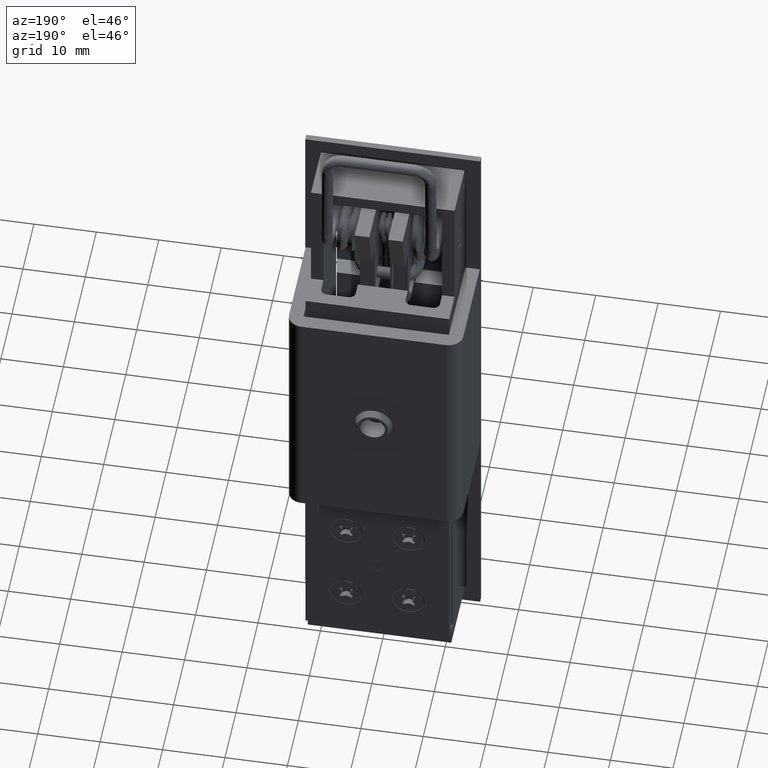
[diagram: clean part render]
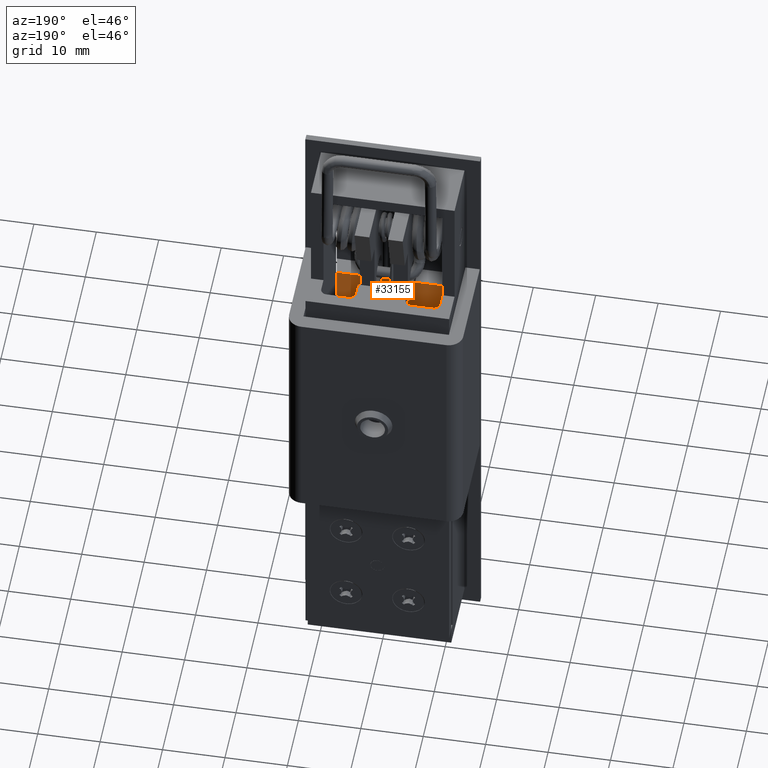
[diagram: same view with one face highlighted and labeled with its STEP entity id]
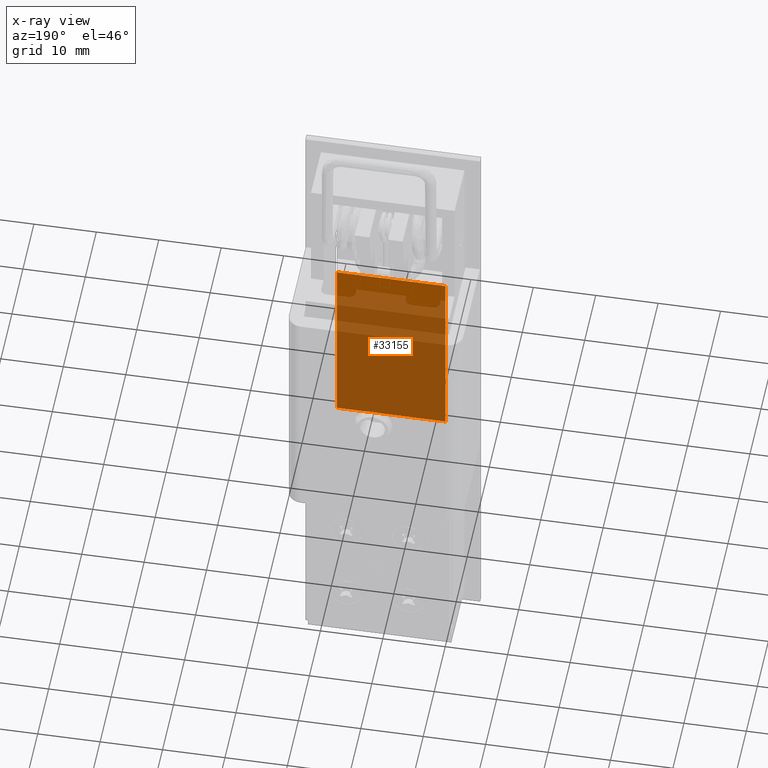
[diagram: x-ray of the same camera — body ghosted, the highlighted face saturated]
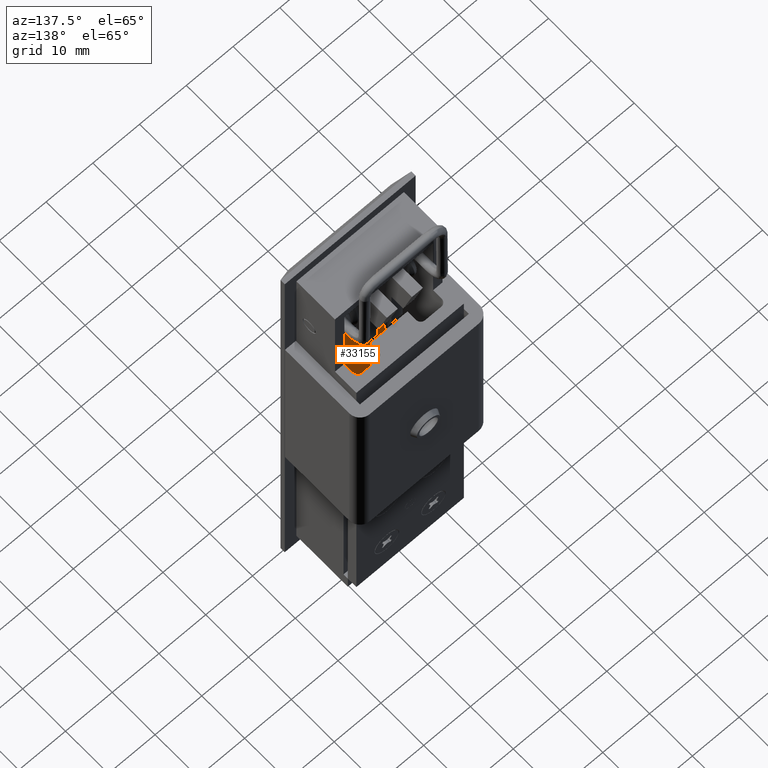
[diagram: same view with one face highlighted and labeled with its STEP entity id]
A machine part, auxiliary view. The second image highlights one B-rep face of the part: STEP entity #33155.
The next image is the same camera in x-ray: the body ghosted, the highlighted face saturated — about 86% of this face is hidden behind the body in this view.
A second angle (auxiliary view) of the same face is appended — the face is thin or edge-on in the first view.
In plain terms, the highlighted face is a freeform B-spline surface patch.
Its self-contained STEP definition (entity closure, byte-faithful):
#32436=CARTESIAN_POINT('',(2.500004459010885,3.845228787752375,72.250025127359010));
#32437=VERTEX_POINT('',#32436);
#32482=CARTESIAN_POINT('',(2.500004459010930,8.694691290922240,72.250025127359010));
#32483=VERTEX_POINT('',#32482);
#32491=CARTESIAN_POINT('',(2.500004459010930,8.694691290922240,72.250025127359010));
#32492=CARTESIAN_POINT('',(2.500004459010885,3.845228787752375,72.250025127359010));
#32493=QUASI_UNIFORM_CURVE('',1,(#32491,#32492),.UNSPECIFIED.,.F.,.U.);
#32494=EDGE_CURVE('',#32483,#32437,#32493,.T.);
#32504=CARTESIAN_POINT('',(2.500004459010885,1.500000000000055,72.250025127359010));
#32505=VERTEX_POINT('',#32504);
#32520=CARTESIAN_POINT('',(2.500004459010885,-1.500000000000000,72.250025127359010));
#32521=VERTEX_POINT('',#32520);
#32527=CARTESIAN_POINT('',(2.500004459010885,-1.500000000000000,72.250025127359010));
#32528=CARTESIAN_POINT('',(2.500004459010885,1.500000000000055,72.250025127359010));
#32529=QUASI_UNIFORM_CURVE('',1,(#32527,#32528),.UNSPECIFIED.,.F.,.U.);
#32530=EDGE_CURVE('',#32521,#32505,#32529,.T.);
#32736=CARTESIAN_POINT('',(2.500004459010930,-8.694691290922261,72.250025127359010));
#32737=VERTEX_POINT('',#32736);
#32738=CARTESIAN_POINT('',(2.500004459010885,-3.845228787752375,72.250025127359010));
#32739=VERTEX_POINT('',#32738);
#32740=CARTESIAN_POINT('',(2.500004459010930,-8.694691290922261,72.250025127359010));
#32741=CARTESIAN_POINT('',(2.500004459010885,-3.845228787752375,72.250025127359010));
#32742=QUASI_UNIFORM_CURVE('',1,(#32740,#32741),.UNSPECIFIED.,.F.,.U.);
#32743=EDGE_CURVE('',#32737,#32739,#32742,.T.);
#32932=CARTESIAN_POINT('',(2.499991650959080,8.694693549327390,41.499975925223850));
#32933=VERTEX_POINT('',#32932);
#32934=CARTESIAN_POINT('',(2.499991650959080,8.694693549327390,41.499975925223850));
#32935=CARTESIAN_POINT('',(2.500004459010930,8.694691290922240,72.250025127359010));
#32936=QUASI_UNIFORM_CURVE('',1,(#32934,#32935),.UNSPECIFIED.,.F.,.U.);
#32937=EDGE_CURVE('',#32933,#32483,#32936,.T.);
#33081=CARTESIAN_POINT('',(2.499991650959080,-8.694693549327280,41.499975925223850));
#33082=VERTEX_POINT('',#33081);
#33098=CARTESIAN_POINT('',(2.499991650959080,-8.694693549327280,41.499975925223850));
#33099=CARTESIAN_POINT('',(2.500004459010930,-8.694691290922261,72.250025127359010));
#33100=QUASI_UNIFORM_CURVE('',1,(#33098,#33099),.UNSPECIFIED.,.F.,.U.);
#33101=EDGE_CURVE('',#33082,#32737,#33100,.T.);
#33128=CARTESIAN_POINT('',(2.499991011197442,-9.563293401201074,39.964012291675381));
#33129=CARTESIAN_POINT('',(2.500005098772454,-9.563293401201074,73.785988485980624));
#33130=CARTESIAN_POINT('',(2.499991011197442,9.563293867620892,39.964012291675381));
#33131=CARTESIAN_POINT('',(2.500005098772454,9.563293867620892,73.785988485980624));
#33132=B_SPLINE_SURFACE_WITH_KNOTS('',1,1,((#33128,#33130),(#33129,#33131)),.UNSPECIFIED.,.F.,.F.,.U.,(2,2),(2,2),(0.0,33.821976194308192),(0.0,19.126587268821961),.UNSPECIFIED.);
#33133=ORIENTED_EDGE('',*,*,#32937,.T.);
#33134=ORIENTED_EDGE('',*,*,#32494,.T.);
#33135=CARTESIAN_POINT('',(2.500004459010885,1.500000000000055,72.250025127359010));
#33136=CARTESIAN_POINT('',(2.500004459010885,3.845228787752375,72.250025127359010));
#33137=QUASI_UNIFORM_CURVE('',1,(#33135,#33136),.UNSPECIFIED.,.F.,.U.);
#33138=EDGE_CURVE('',#32505,#32437,#33137,.T.);
#33139=ORIENTED_EDGE('',*,*,#33138,.F.);
#33140=ORIENTED_EDGE('',*,*,#32530,.F.);
#33141=CARTESIAN_POINT('',(2.500004459010885,-3.845228787752375,72.250025127359010));
#33142=CARTESIAN_POINT('',(2.500004459010885,-1.500000000000000,72.250025127359010));
#33143=QUASI_UNIFORM_CURVE('',1,(#33141,#33142),.UNSPECIFIED.,.F.,.U.);
#33144=EDGE_CURVE('',#32739,#32521,#33143,.T.);
#33145=ORIENTED_EDGE('',*,*,#33144,.F.);
#33146=ORIENTED_EDGE('',*,*,#32743,.F.);
#33147=ORIENTED_EDGE('',*,*,#33101,.F.);
#33148=CARTESIAN_POINT('',(2.499991650959080,-8.694693549327280,41.499975925223850));
#33149=CARTESIAN_POINT('',(2.499991650959080,8.694693549327390,41.499975925223850));
#33150=QUASI_UNIFORM_CURVE('',1,(#33148,#33149),.UNSPECIFIED.,.F.,.U.);
#33151=EDGE_CURVE('',#33082,#32933,#33150,.T.);
#33152=ORIENTED_EDGE('',*,*,#33151,.T.);
#33153=EDGE_LOOP('',(#33133,#33134,#33139,#33140,#33145,#33146,#33147,#33152));
#33154=FACE_OUTER_BOUND('',#33153,.T.);
#33155=ADVANCED_FACE('',(#33154),#33132,.F.);